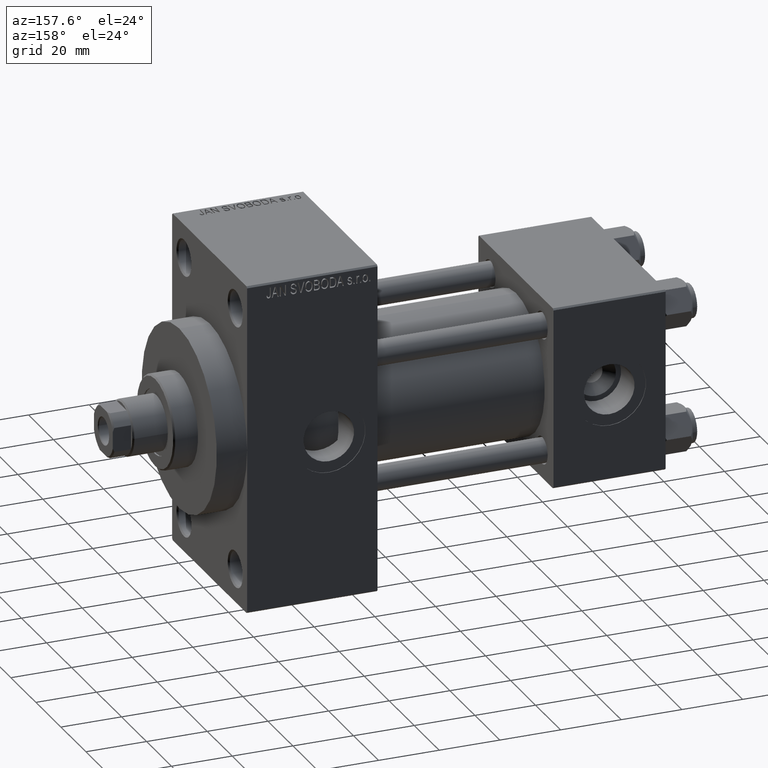
[diagram: clean part render]
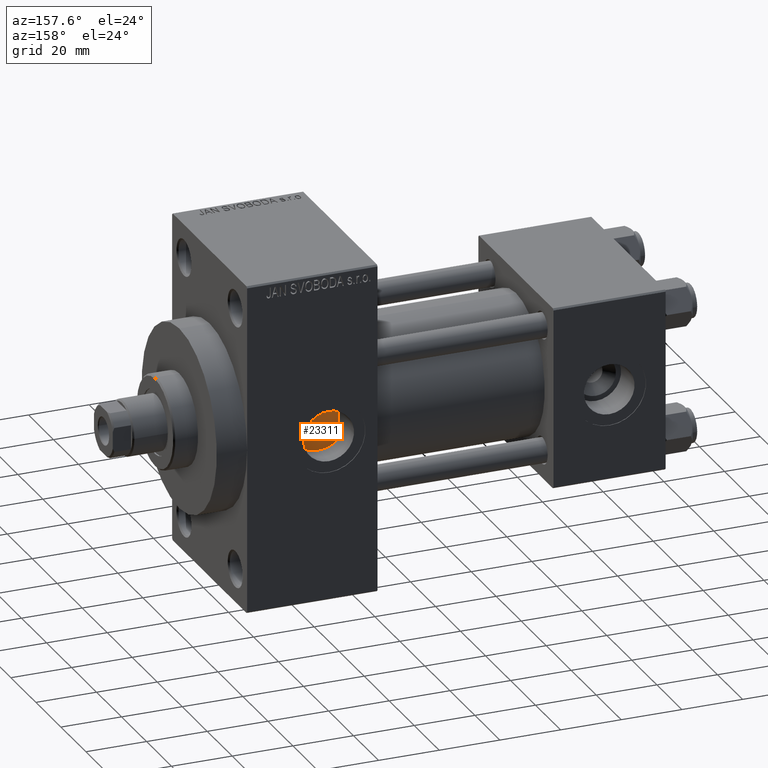
[diagram: same view with one face highlighted and labeled with its STEP entity id]
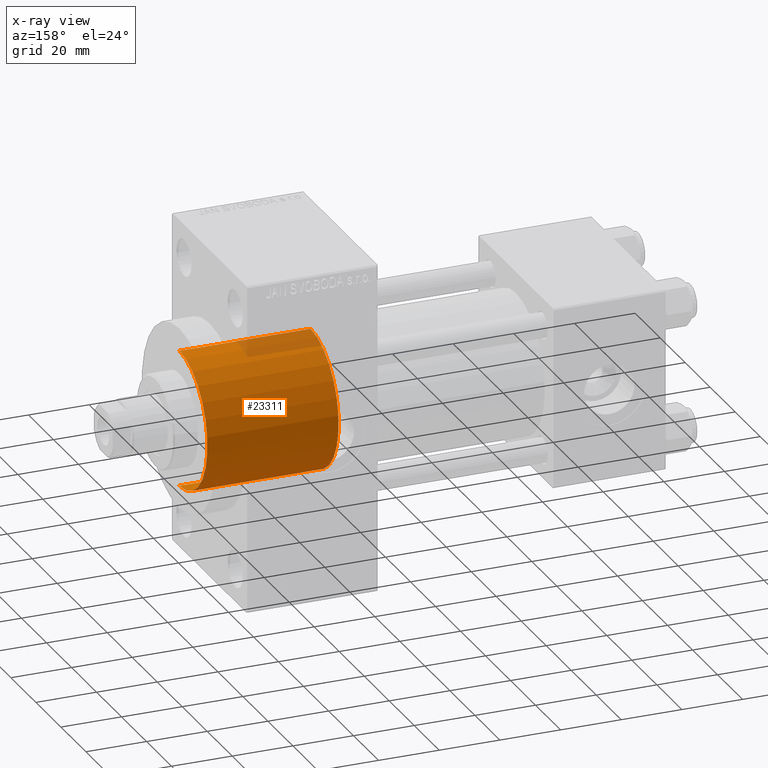
[diagram: x-ray of the same camera — body ghosted, the highlighted face saturated]
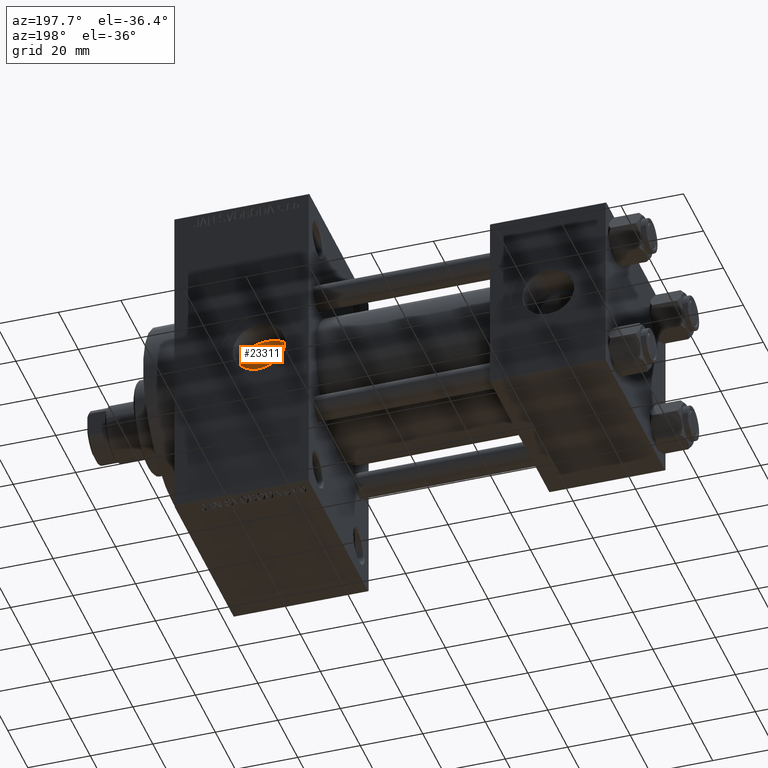
[diagram: same view with one face highlighted and labeled with its STEP entity id]
A machine part, auxiliary view. The second image highlights one B-rep face of the part: STEP entity #23311.
The next image is the same camera in x-ray: the body ghosted, the highlighted face saturated — about 7% of this face is hidden behind the body in this view.
A second angle (auxiliary view) of the same face is appended — the face is thin or edge-on in the first view.
In plain terms, the highlighted cylindrical surface (partial cylindrical patch) has radius 22.5 mm, axis along (-1, 0, 0).
Its self-contained STEP definition (entity closure, byte-faithful):
#11 = AXIS2_PLACEMENT_3D ( 'NONE', #32715, #25785, #28894 ) ;
#63 = CARTESIAN_POINT ( 'NONE',  ( 22.50000000000000355, 2.755455298081545172E-15, 43.25999999999999801 ) ) ;
#148 = ORIENTED_EDGE ( 'NONE', *, *, #19298, .F. ) ;
#2211 = CARTESIAN_POINT ( 'NONE',  ( 0.000000000000000000, 0.000000000000000000, 43.25999999999999801 ) ) ;
#3854 = CIRCLE ( 'NONE', #11, 22.50000000000000355 ) ;
#4093 = DIRECTION ( 'NONE',  ( 1.000000000000000000, 0.000000000000000000, 0.000000000000000000 ) ) ;
#4625 = EDGE_CURVE ( 'NONE', #25067, #29391, #3854, .T. ) ;
#5872 = CARTESIAN_POINT ( 'NONE',  ( 22.50000000000000355, 2.755455298081545172E-15, 43.25999999999999801 ) ) ;
#6329 = LINE ( 'NONE', #63, #35982 ) ;
#7073 = EDGE_CURVE ( 'NONE', #36344, #29391, #6329, .T. ) ;
#9519 = LINE ( 'NONE', #39127, #32952 ) ;
#9595 = AXIS2_PLACEMENT_3D ( 'NONE', #29392, #36800, #4093 ) ;
#10478 = EDGE_LOOP ( 'NONE', ( #18576, #148, #38899, #19035 ) ) ;
#12715 = DIRECTION ( 'NONE',  ( -0.000000000000000000, -0.000000000000000000, -1.000000000000000000 ) ) ;
#12982 = CARTESIAN_POINT ( 'NONE',  ( -22.50000000000000355, 0.000000000000000000, 0.000000000000000000 ) ) ;
#16440 = CIRCLE ( 'NONE', #9595, 22.50000000000000355 ) ;
#16766 = CARTESIAN_POINT ( 'NONE',  ( 22.50000000000000355, 2.755455298081545172E-15, 0.000000000000000000 ) ) ;
#17850 = DIRECTION ( 'NONE',  ( -0.000000000000000000, -0.000000000000000000, -1.000000000000000000 ) ) ;
#18576 = ORIENTED_EDGE ( 'NONE', *, *, #7073, .F. ) ;
#19035 = ORIENTED_EDGE ( 'NONE', *, *, #4625, .T. ) ;
#19298 = EDGE_CURVE ( 'NONE', #35209, #36344, #16440, .T. ) ;
#23311 = ADVANCED_FACE ( 'NONE', ( #30391 ), #44985, .T. ) ;
#25067 = VERTEX_POINT ( 'NONE', #12982 ) ;
#25785 = DIRECTION ( 'NONE',  ( 0.000000000000000000, 0.000000000000000000, 1.000000000000000000 ) ) ;
#27734 = AXIS2_PLACEMENT_3D ( 'NONE', #2211, #12715, #42123 ) ;
#28894 = DIRECTION ( 'NONE',  ( 1.000000000000000000, 0.000000000000000000, 0.000000000000000000 ) ) ;
#29391 = VERTEX_POINT ( 'NONE', #16766 ) ;
#29392 = CARTESIAN_POINT ( 'NONE',  ( 0.000000000000000000, 0.000000000000000000, 43.25999999999999801 ) ) ;
#30391 = FACE_OUTER_BOUND ( 'NONE', #10478, .T. ) ;
#32715 = CARTESIAN_POINT ( 'NONE',  ( 0.000000000000000000, 0.000000000000000000, 0.000000000000000000 ) ) ;
#32952 = VECTOR ( 'NONE', #17850, 1000.000000000000000 ) ;
#35209 = VERTEX_POINT ( 'NONE', #41494 ) ;
#35982 = VECTOR ( 'NONE', #39294, 1000.000000000000000 ) ;
#36344 = VERTEX_POINT ( 'NONE', #5872 ) ;
#36800 = DIRECTION ( 'NONE',  ( 0.000000000000000000, 0.000000000000000000, 1.000000000000000000 ) ) ;
#38899 = ORIENTED_EDGE ( 'NONE', *, *, #45101, .T. ) ;
#39127 = CARTESIAN_POINT ( 'NONE',  ( -22.50000000000000355, 0.000000000000000000, 43.25999999999999801 ) ) ;
#39294 = DIRECTION ( 'NONE',  ( -0.000000000000000000, -0.000000000000000000, -1.000000000000000000 ) ) ;
#41494 = CARTESIAN_POINT ( 'NONE',  ( -22.50000000000000355, 0.000000000000000000, 43.25999999999999801 ) ) ;
#42123 = DIRECTION ( 'NONE',  ( -1.000000000000000000, 0.000000000000000000, 0.000000000000000000 ) ) ;
#44985 = CYLINDRICAL_SURFACE ( 'NONE', #27734, 22.50000000000000355 ) ;
#45101 = EDGE_CURVE ( 'NONE', #35209, #25067, #9519, .T. ) ;